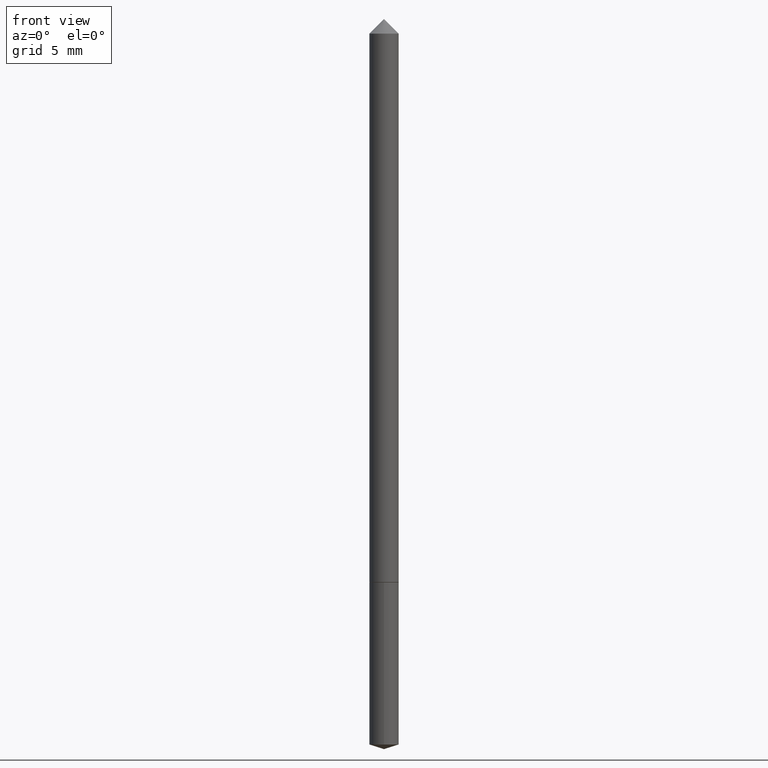
[diagram: clean part render]
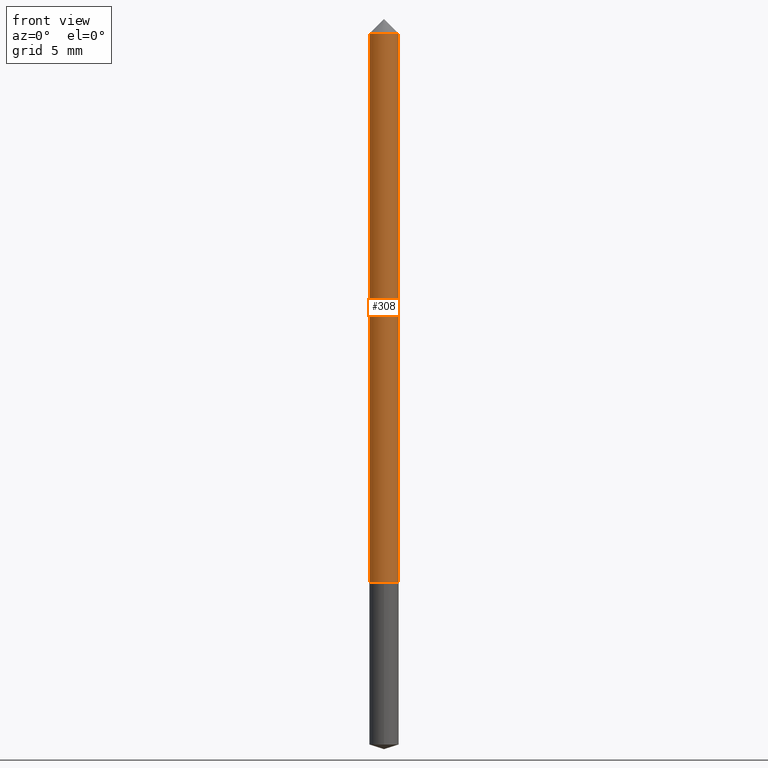
[diagram: same view with one face highlighted and labeled with its STEP entity id]
A machine part, front view. The second image highlights one B-rep face of the part: STEP entity #308.
In plain terms, the highlighted cylindrical surface (edge-blend (fillet) strip) has radius 0.5994 mm, axis along (-0, 0, 1).
Its self-contained STEP definition (entity closure, byte-faithful):
#4 = DIRECTION ( 'NONE',  ( 1.000000000000000000, -6.982962677686267499E-15, 0.000000000000000000 ) ) ;
#9 = DIRECTION ( 'NONE',  ( 1.000000000000000000, -6.982962677686267499E-15, 0.000000000000000000 ) ) ;
#14 = DIRECTION ( 'NONE',  ( -2.445468806185136597E-29, 3.491481338843145583E-15, 1.000000000000000000 ) ) ;
#27 = DIRECTION ( 'NONE',  ( -2.445468806185136877E-29, 3.491481338843145188E-15, 1.000000000000000000 ) ) ;
#65 = CARTESIAN_POINT ( 'NONE',  ( 0.000000000000000000, 0.000000000000000000, 0.000000000000000000 ) ) ;
#88 = CIRCLE ( 'NONE', #267, 0.02360000000000000639 ) ;
#93 = CARTESIAN_POINT ( 'NONE',  ( -0.02360000000000005843, 1.676880856393840590E-16, -1.160868681300160606E-30 ) ) ;
#98 = ORIENTED_EDGE ( 'NONE', *, *, #322, .F. ) ;
#120 = DIRECTION ( 'NONE',  ( 1.000000000000000000, -6.982962677686265133E-15, 4.876176775795935793E-29 ) ) ;
#121 = VECTOR ( 'NONE', #150, 39.37007874015748143 ) ;
#126 = ORIENTED_EDGE ( 'NONE', *, *, #182, .T. ) ;
#141 = DIRECTION ( 'NONE',  ( -2.445468806185136597E-29, 3.491481338843145583E-15, 1.000000000000000000 ) ) ;
#142 = CARTESIAN_POINT ( 'NONE',  ( 2.232223926285792489E-29, -3.187024166096022738E-15, -0.9127999999999999448 ) ) ;
#148 = EDGE_CURVE ( 'NONE', #197, #243, #282, .T. ) ;
#150 = DIRECTION ( 'NONE',  ( -2.445468806185136877E-29, 3.491481338843145188E-15, 1.000000000000000000 ) ) ;
#151 = CYLINDRICAL_SURFACE ( 'NONE', #315, 0.02360000000000005843 ) ;
#156 = VERTEX_POINT ( 'NONE', #258 ) ;
#179 = CARTESIAN_POINT ( 'NONE',  ( 7.642090019328602662E-31, -1.091087918388490267E-16, -0.03125000000000020817 ) ) ;
#182 = EDGE_CURVE ( 'NONE', #156, #197, #246, .T. ) ;
#186 = ORIENTED_EDGE ( 'NONE', *, *, #329, .F. ) ;
#197 = VERTEX_POINT ( 'NONE', #252 ) ;
#210 = DIRECTION ( 'NONE',  ( -2.445468806185136597E-29, 3.491481338843145583E-15, 1.000000000000000000 ) ) ;
#224 = CARTESIAN_POINT ( 'NONE',  ( 0.02360000000000005843, -1.647979191933962724E-16, 1.150777719087843758E-30 ) ) ;
#228 = CARTESIAN_POINT ( 'NONE',  ( 0.02360000000000000639, -2.739067110322449540E-16, -0.03125000000000020817 ) ) ;
#234 = LINE ( 'NONE', #93, #121 ) ;
#243 = VERTEX_POINT ( 'NONE', #228 ) ;
#246 = CIRCLE ( 'NONE', #333, 0.02360000000000010700 ) ;
#249 = VERTEX_POINT ( 'NONE', #290 ) ;
#252 = CARTESIAN_POINT ( 'NONE',  ( 0.02360000000000010700, -3.351822085289419381E-15, -0.9127999999999999448 ) ) ;
#258 = CARTESIAN_POINT ( 'NONE',  ( -0.02360000000000010700, -3.019336080456638236E-15, -0.9127999999999999448 ) ) ;
#267 = AXIS2_PLACEMENT_3D ( 'NONE', #179, #14, #9 ) ;
#282 = LINE ( 'NONE', #224, #356 ) ;
#289 = FACE_OUTER_BOUND ( 'NONE', #351, .T. ) ;
#290 = CARTESIAN_POINT ( 'NONE',  ( -0.02360000000000000639, -1.480378393328050233E-15, -0.03125000000000020817 ) ) ;
#308 = ADVANCED_FACE ( 'NONE', ( #289 ), #151, .T. ) ;
#315 = AXIS2_PLACEMENT_3D ( 'NONE', #65, #210, #120 ) ;
#322 = EDGE_CURVE ( 'NONE', #249, #243, #88, .T. ) ;
#328 = ORIENTED_EDGE ( 'NONE', *, *, #148, .T. ) ;
#329 = EDGE_CURVE ( 'NONE', #156, #249, #234, .T. ) ;
#333 = AXIS2_PLACEMENT_3D ( 'NONE', #142, #141, #4 ) ;
#351 = EDGE_LOOP ( 'NONE', ( #186, #126, #328, #98 ) ) ;
#356 = VECTOR ( 'NONE', #27, 39.37007874015748143 ) ;